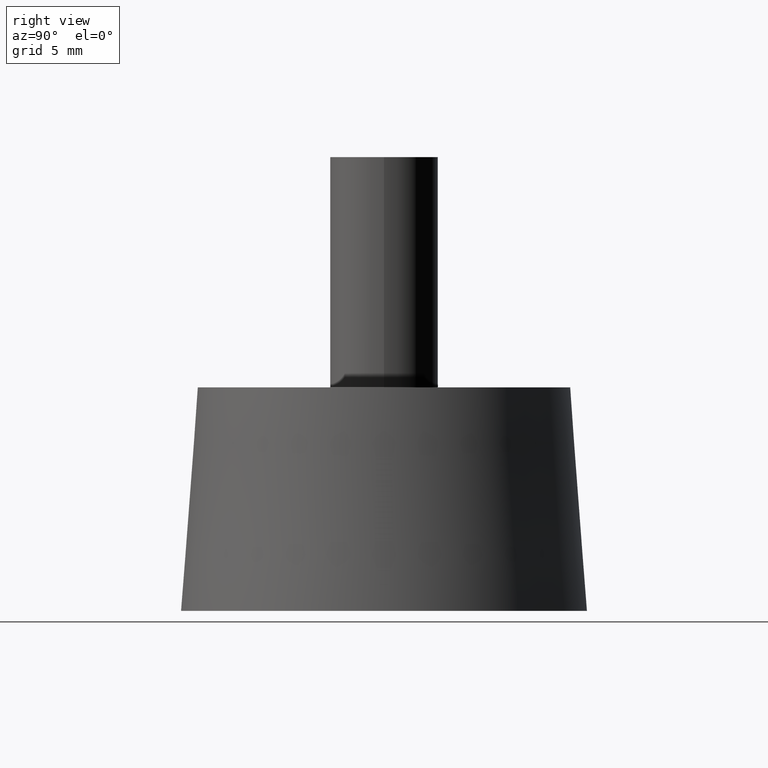
[diagram: clean part render]
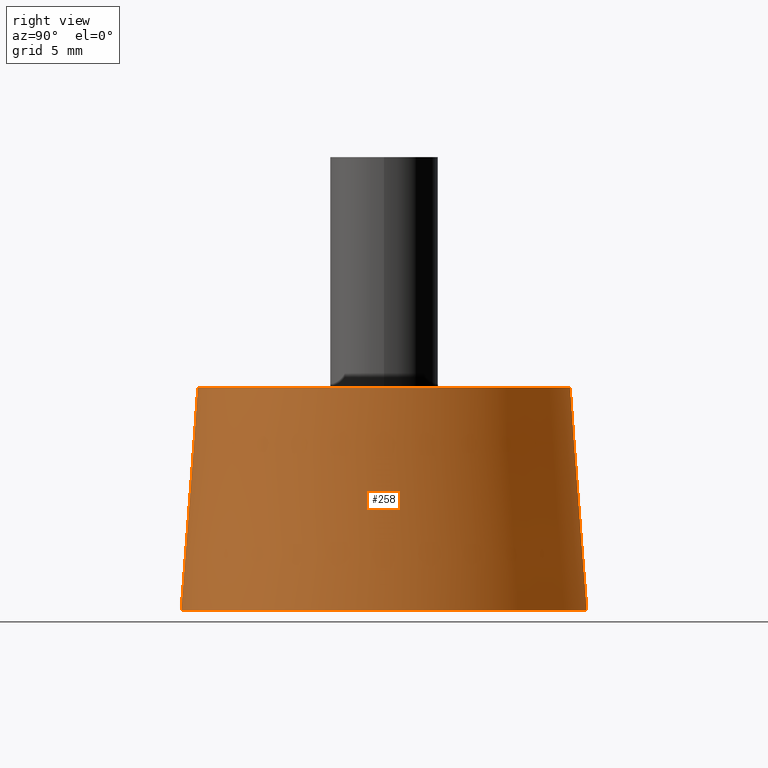
[diagram: same view with one face highlighted and labeled with its STEP entity id]
A machine part, right view. The second image highlights one B-rep face of the part: STEP entity #258.
In plain terms, the highlighted conical surface has half-angle 4.332 deg.
Its self-contained STEP definition (entity closure, byte-faithful):
#15=CONICAL_SURFACE('',#305,15.,4.33231398318852);
#48=FACE_BOUND('',#115,.T.);
#71=FACE_OUTER_BOUND('',#114,.T.);
#114=EDGE_LOOP('',(#224));
#115=EDGE_LOOP('',(#225));
#128=CIRCLE('',#285,15.);
#137=CIRCLE('',#301,13.75);
#150=VERTEX_POINT('',#435);
#159=VERTEX_POINT('',#460);
#172=EDGE_CURVE('',#150,#150,#128,.T.);
#181=EDGE_CURVE('',#159,#159,#137,.T.);
#224=ORIENTED_EDGE('',*,*,#172,.T.);
#225=ORIENTED_EDGE('',*,*,#181,.T.);
#258=ADVANCED_FACE('',(#71,#48),#15,.T.);
#285=AXIS2_PLACEMENT_3D('',#436,#356,#357);
#301=AXIS2_PLACEMENT_3D('',#461,#388,#389);
#305=AXIS2_PLACEMENT_3D('',#465,#396,#397);
#356=DIRECTION('center_axis',(0.,0.,1.));
#357=DIRECTION('ref_axis',(-1.,0.,0.));
#388=DIRECTION('center_axis',(0.,0.,-1.));
#389=DIRECTION('ref_axis',(-1.,0.,0.));
#396=DIRECTION('center_axis',(0.,0.,-1.));
#397=DIRECTION('ref_axis',(-1.,0.,0.));
#435=CARTESIAN_POINT('',(-15.,0.,0.));
#436=CARTESIAN_POINT('Origin',(0.,0.,0.));
#460=CARTESIAN_POINT('',(-13.75,0.,16.5));
#461=CARTESIAN_POINT('Origin',(0.,0.,16.5));
#465=CARTESIAN_POINT('Origin',(0.,0.,0.));